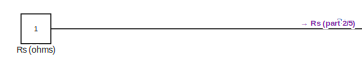
[diagram: root canvas - part 1/5, top center region]
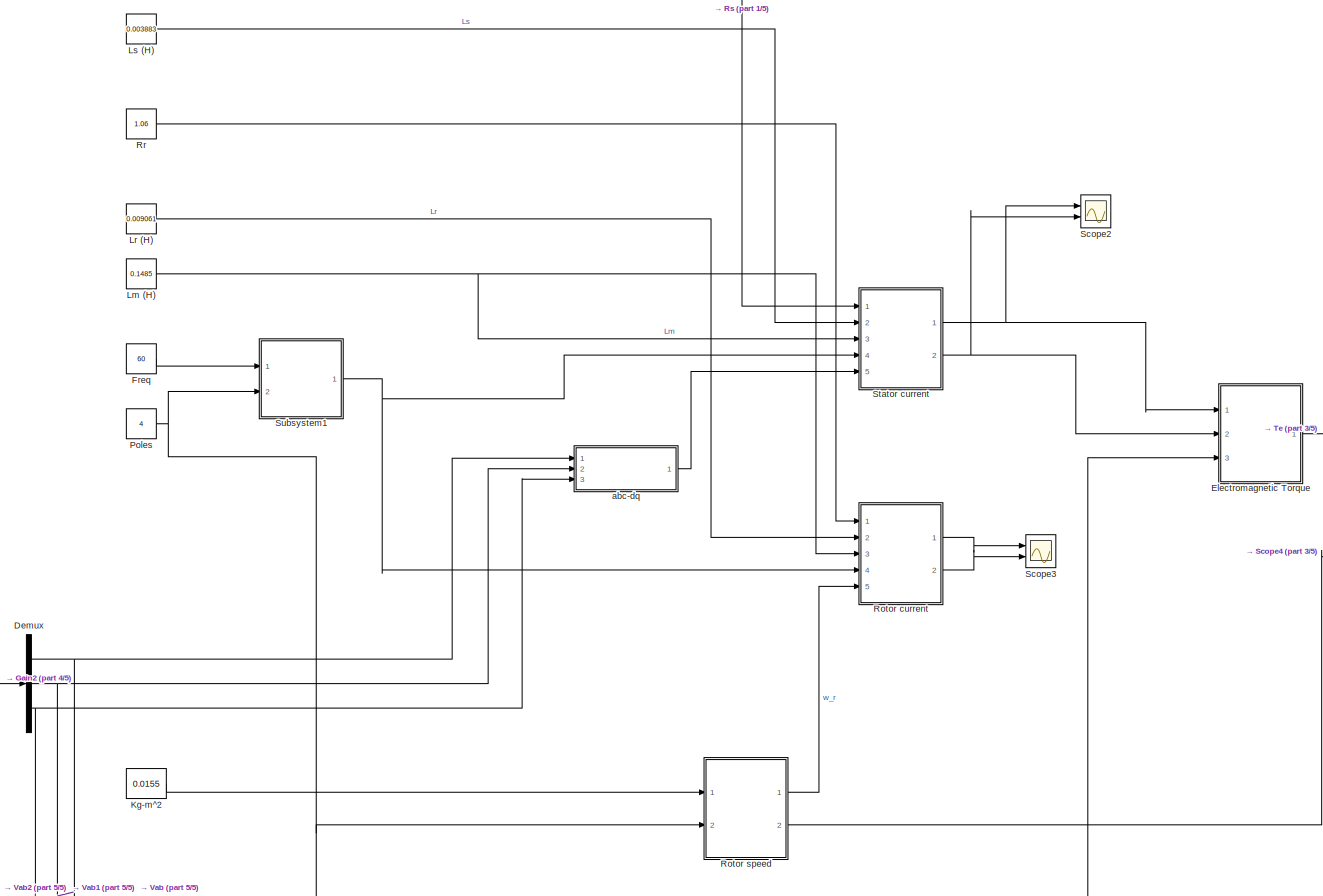
[diagram: root canvas - part 2/5, central region]
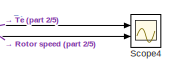
[diagram: root canvas - part 3/5, middle right region]
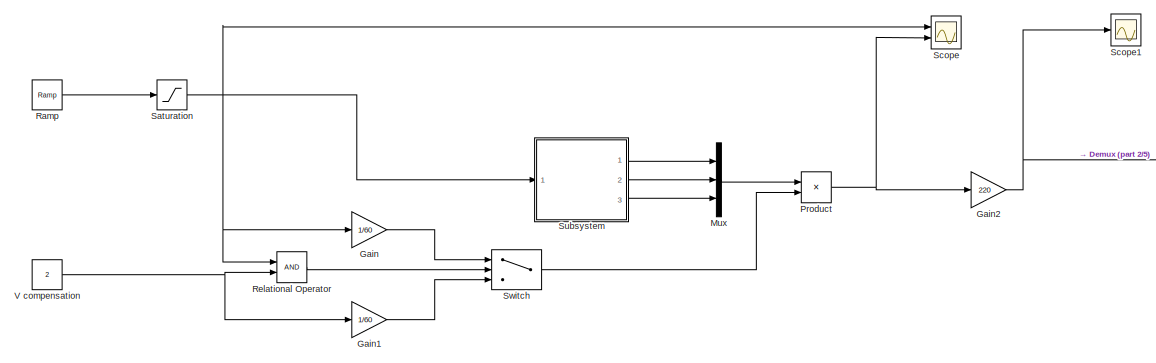
[diagram: root canvas - part 4/5, middle left region]
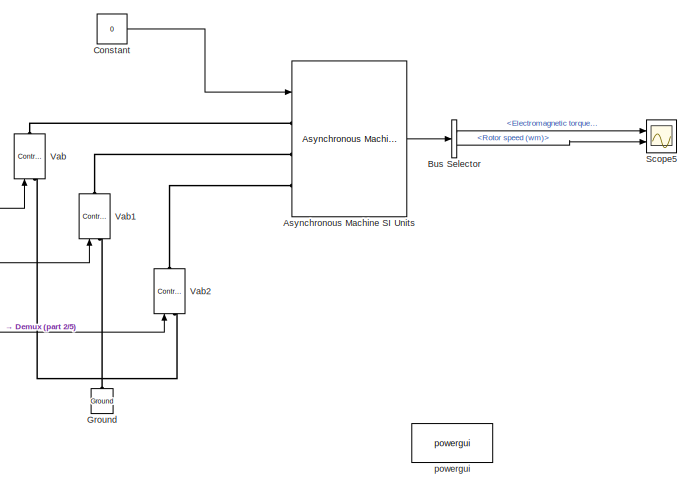
[diagram: root canvas - part 5/5, bottom center region]
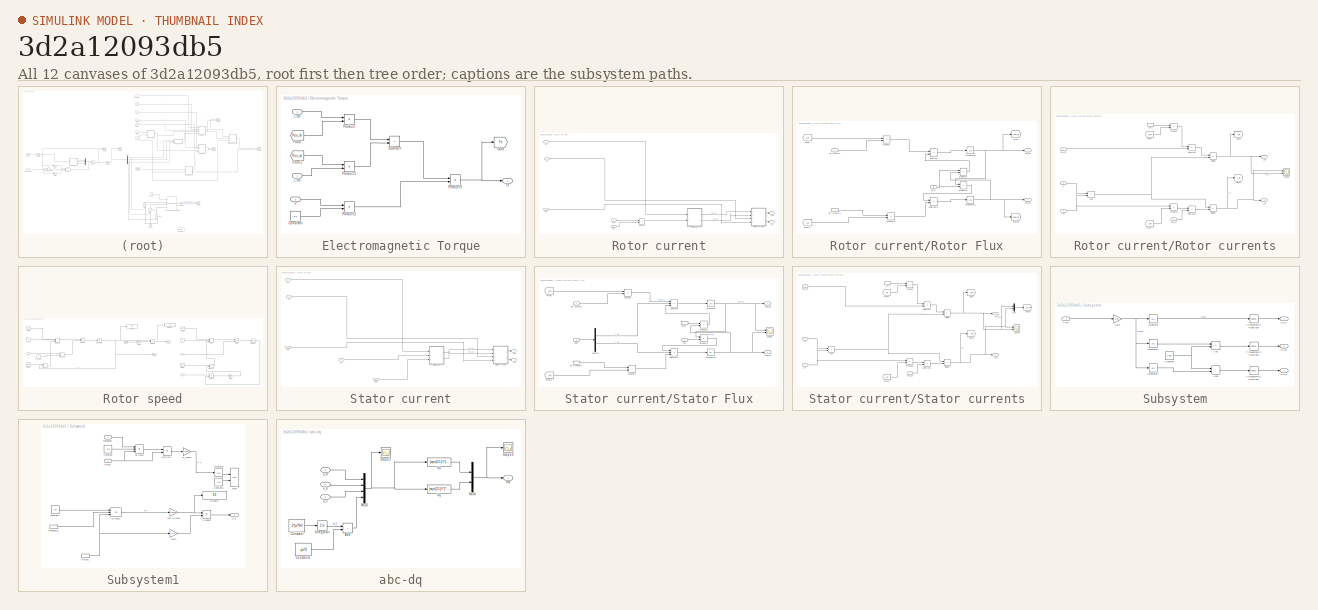
[diagram: thumbnail index - all 12 canvases of the model, root first then tree order]
MODEL slx_3d2a12093db5
KIND model
CONFIG AbsTol = auto
CONFIG EnableMultiTasking = off
CONFIG FixedStep = 100e-6
CONFIG MaxStep = auto
CONFIG MinStep = auto
CONFIG RelTol = 1e-3
CONFIG SampleTimeConstraint = Unconstrained
CONFIG Solver = FixedStepAuto
CONFIG SolverName = FixedStepAuto
CONFIG StartTime = 0.0
CONFIG StopTime = 2
BLOCK [Reference] Asynchronous Machine SI Units  REF=powerlib/Machines/Asynchronous Machine
SI Units
  Ports = [1, 1, 0, 0, 0, 3]
  SourceBlock = powerlib/Machines/Asynchronous Machine\nSI Units
  SourceProductBaseCode = PS
  SourceType = Asynchronous Machine
BLOCK [BusSelector] Bus Selector
  OutputSignals = Mechanical.Electromagnetic torque Te (N*m),Mechanical.Rotor speed (wm)
  Ports = [1, 2]
BLOCK [Constant] Constant
  Value = 0
BLOCK [Demux] Demux
  Outputs = 3
  Ports = [1, 3]
BLOCK [SubSystem] Electromagnetic Torque
  Ports = [3, 1]
  RequestExecContextInheritance = off
BLOCK [Constant] Electromagnetic Torque/Constant
  Value = 3/4
BLOCK [From] Electromagnetic Torque/From
  GotoTag = flux_dr
  TagVisibility = global
BLOCK [From] Electromagnetic Torque/From1
  GotoTag = flux_qr
  TagVisibility = global
BLOCK [Goto] Electromagnetic Torque/Goto
  GotoTag = Te
  TagVisibility = global
BLOCK [Inport] Electromagnetic Torque/P
  Port = 3
BLOCK [Product] Electromagnetic Torque/Product
  Ports = [2, 1]
BLOCK [Product] Electromagnetic Torque/Product1
  Ports = [2, 1]
BLOCK [Product] Electromagnetic Torque/Product2
  Ports = [2, 1]
BLOCK [Product] Electromagnetic Torque/Product3
  Ports = [2, 1]
BLOCK [Sum] Electromagnetic Torque/Subtract
  IconShape = rectangular
  Inputs = +-
  Ports = [2, 1]
BLOCK [Outport] Electromagnetic Torque/Te
  VectorParamsAs1DForOutWhenUnconnected = off
BLOCK [Inport] Electromagnetic Torque/i_ds
BLOCK [Inport] Electromagnetic Torque/i_qs
  Port = 2
BLOCK [Constant] Freq
  Value = 60
BLOCK [Gain] Gain
  Gain = 1/60
BLOCK [Gain] Gain1
  Gain = 1/60
BLOCK [Gain] Gain2
  Gain = 220
BLOCK [Reference] Ground  REF=powerlib/Elements/Ground
  NameLocation = right
  Ports = [0, 0, 0, 0, 0, 1]
  SourceBlock = powerlib/Elements/Ground
  SourceProductBaseCode = PS
  SourceType = Ground
BLOCK [Constant] Kg-m^2
  Value = 0.0155
BLOCK [Constant] Lm (H)
  Value = 0.1485
BLOCK [Constant] Lr (H)
  Value = 0.009061
BLOCK [Constant] Ls (H)
  Value = 0.003883
BLOCK [Mux] Mux
  DisplayOption = bar
  Inputs = 3
  Ports = [3, 1]
BLOCK [Constant] Poles
  Value = 4
BLOCK [Product] Product
  Ports = [2, 1]
BLOCK [Reference] Ramp  REF=simulink/Sources/Ramp
  Ports = [0, 1]
  SourceBlock = simulink/Sources/Ramp
  SourceProductBaseCode = SL
  SourceType = Ramp
BLOCK [RelationalOperator] Relational Operator
  InputSameDT = off
  OutDataTypeStr = boolean
  Ports = [2, 1]
  RndMeth = Simplest
BLOCK [SubSystem] Rotor current
  Ports = [5, 2]
  RequestExecContextInheritance = off
BLOCK [Inport] Rotor current/Lm
  Port = 3
BLOCK [Inport] Rotor current/Lr
  Port = 2
BLOCK [SubSystem] Rotor current/Rotor Flux
  Ports = [2, 2]
  RequestExecContextInheritance = off
BLOCK [From] Rotor current/Rotor Flux/From
  GotoTag = i_dr
  TagVisibility = global
BLOCK [From] Rotor current/Rotor Flux/From1
  GotoTag = i_qr
  TagVisibility = global
BLOCK [Goto] Rotor current/Rotor Flux/Goto
  GotoTag = flux_dr
  TagVisibility = global
BLOCK [Goto] Rotor current/Rotor Flux/Goto1
  GotoTag = flux_qr
  TagVisibility = global
BLOCK [Integrator] Rotor current/Rotor Flux/Integrator
  Ports = [1, 1]
BLOCK [Integrator] Rotor current/Rotor Flux/Integrator1
  Ports = [1, 1]
BLOCK [Inport] Rotor current/Rotor Flux/Rr (Ohms)
BLOCK [InportShadow] Rotor current/Rotor Flux/Rr (Ohms)1
BLOCK [Sum] Rotor current/Rotor Flux/Subtract
  IconShape = rectangular
  Inputs = -+
  Ports = [2, 1]
BLOCK [Sum] Rotor current/Rotor Flux/Subtract1
  IconShape = rectangular
  Inputs = --
  Ports = [2, 1]
BLOCK [Outport] Rotor current/Rotor Flux/flux_dr
  VectorParamsAs1DForOutWhenUnconnected = off
BLOCK [Outport] Rotor current/Rotor Flux/flux_qr
  Port = 2
  VectorParamsAs1DForOutWhenUnconnected = off
BLOCK [Product] Rotor current/Rotor Flux/product
  Inputs = **
  Ports = [2, 1]
BLOCK [Product] Rotor current/Rotor Flux/product1
  Inputs = **
  Ports = [2, 1]
BLOCK [Product] Rotor current/Rotor Flux/product2
  Inputs = **
  Ports = [2, 1]
BLOCK [Product] Rotor current/Rotor Flux/product3
  Inputs = **
  Ports = [2, 1]
BLOCK [Inport] Rotor current/Rotor Flux/w_s1
  Port = 2
BLOCK [SubSystem] Rotor current/Rotor currents
  Ports = [4, 2]
  RequestExecContextInheritance = off
BLOCK [Sum] Rotor current/Rotor currents/Add
  IconShape = rectangular
  Ports = [2, 1]
BLOCK [Product] Rotor current/Rotor currents/Divide
  Inputs = */
  Ports = [2, 1]
BLOCK [Product] Rotor current/Rotor currents/Divide1
  Inputs = /*
  Ports = [2, 1]
BLOCK [From] Rotor current/Rotor currents/From
  GotoTag = i_ds
  TagVisibility = global
BLOCK [From] Rotor current/Rotor currents/From1
  GotoTag = i_qs
  TagVisibility = global
BLOCK [Goto] Rotor current/Rotor currents/Goto
  GotoTag = i_dr
  TagVisibility = global
BLOCK [Goto] Rotor current/Rotor currents/Goto1
  GotoTag = i_qr
  TagVisibility = global
BLOCK [Inport] Rotor current/Rotor currents/Lm
  Port = 4
BLOCK [InportShadow] Rotor current/Rotor currents/Lm1
  Port = 4
BLOCK [Inport] Rotor current/Rotor currents/Lr
  Port = 3
BLOCK [Product] Rotor current/Rotor currents/Product
  Ports = [2, 1]
BLOCK [Product] Rotor current/Rotor currents/Product1
  Ports = [2, 1]
BLOCK [Scope] Rotor current/Rotor currents/Scope
  Floating = off
  NumInputPorts = 2
  Ports = [2]
  ScopeSpecificationString = Simulink.scopes.TimeScopeBlockCfg('CurrentConfiguration', extmgr.ConfigurationSet(extmgr.Configuration('Core','General UI',true),extmgr.Configuration('Core','Source UI',true),extmgr.Configuration('Sources','WiredSimulink',true,'DataLoggingVariableName','ScopeData1'),extmgr.Configuration('Visuals','Time Domain',true,'SerializedDisplays',{struct('MinYLimReal','-381.16693','MaxYLimReal','372.37731','...<+1415ch>
BLOCK [Sum] Rotor current/Rotor currents/Subtract
  IconShape = rectangular
  Inputs = -+
  Ports = [2, 1]
BLOCK [Sum] Rotor current/Rotor currents/Subtract1
  IconShape = rectangular
  Inputs = -+
  Ports = [2, 1]
BLOCK [Inport] Rotor current/Rotor currents/flus_qr
  Port = 2
BLOCK [Inport] Rotor current/Rotor currents/flux_dr
BLOCK [Outport] Rotor current/Rotor currents/i_dr
  VectorParamsAs1DForOutWhenUnconnected = off
BLOCK [Outport] Rotor current/Rotor currents/i_qr
  Port = 2
  VectorParamsAs1DForOutWhenUnconnected = off
BLOCK [Inport] Rotor current/Rr
BLOCK [Sum] Rotor current/Subtract
  IconShape = rectangular
  Inputs = +-
  Ports = [2, 1]
BLOCK [Outport] Rotor current/i_dr
  VectorParamsAs1DForOutWhenUnconnected = off
BLOCK [Outport] Rotor current/i_qr
  Port = 2
  VectorParamsAs1DForOutWhenUnconnected = off
BLOCK [Inport] Rotor current/w_r
  Port = 5
BLOCK [Inport] Rotor current/w_s
  Port = 4
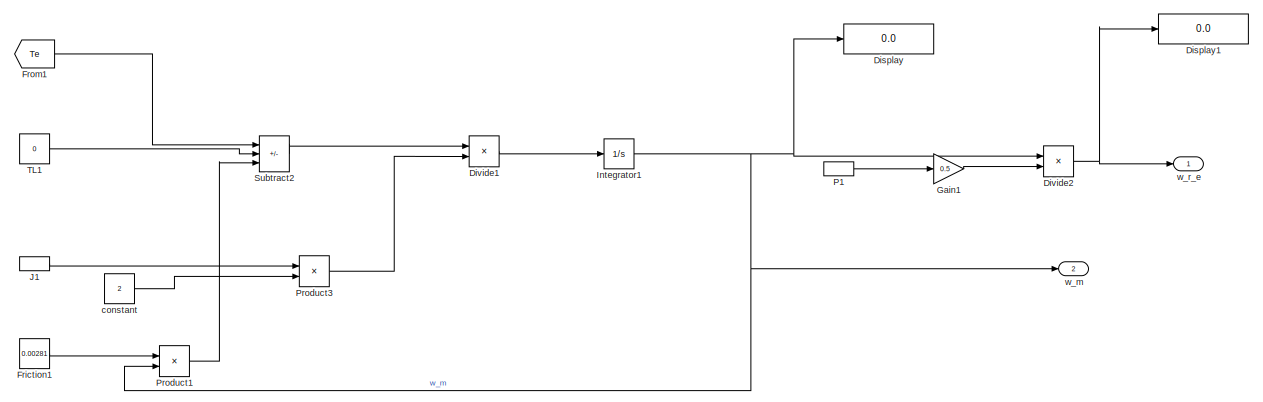
[diagram: Rotor speed - part 1/2, middle left region]
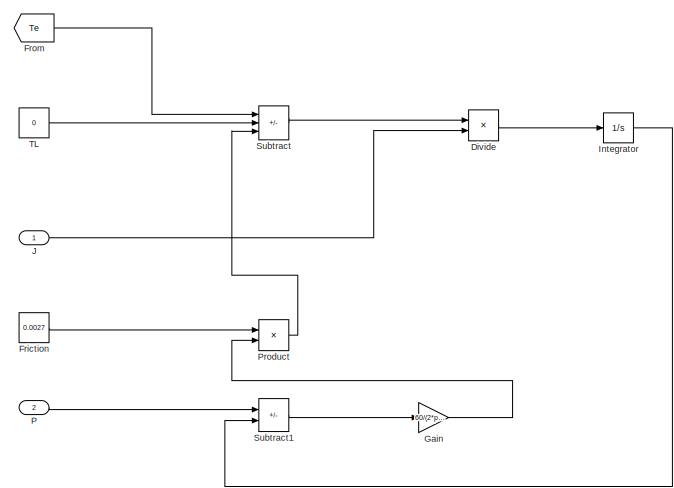
[diagram: Rotor speed - part 2/2, right side, full height]
BLOCK [SubSystem] Rotor speed
  Ports = [2, 2]
  RequestExecContextInheritance = off
BLOCK [Display] Rotor speed/Display
  Decimation = 1
  Ports = [1]
BLOCK [Display] Rotor speed/Display1
  Decimation = 1
  Ports = [1]
BLOCK [Product] Rotor speed/Divide
  Commented = on
  Inputs = */
  Ports = [2, 1]
BLOCK [Product] Rotor speed/Divide1
  Inputs = */
  Ports = [2, 1]
BLOCK [Product] Rotor speed/Divide2
  Inputs = **
  Ports = [2, 1]
BLOCK [Constant] Rotor speed/Friction
  Commented = on
  Value = 0.0027
BLOCK [Constant] Rotor speed/Friction1
  Value = 0.00281
BLOCK [From] Rotor speed/From
  Commented = on
  GotoTag = Te
  TagVisibility = global
BLOCK [From] Rotor speed/From1
  GotoTag = Te
  TagVisibility = global
BLOCK [Gain] Rotor speed/Gain
  Commented = on
  Gain = 60/(2*pi)
BLOCK [Gain] Rotor speed/Gain1
  Gain = 0.5
BLOCK [Integrator] Rotor speed/Integrator
  Commented = on
  Ports = [1, 1]
BLOCK [Integrator] Rotor speed/Integrator1
  Ports = [1, 1]
BLOCK [Inport] Rotor speed/J
BLOCK [InportShadow] Rotor speed/J1
BLOCK [Inport] Rotor speed/P
  Port = 2
BLOCK [InportShadow] Rotor speed/P1
  Port = 2
BLOCK [Product] Rotor speed/Product
  Commented = on
  Ports = [2, 1]
BLOCK [Product] Rotor speed/Product1
  Ports = [2, 1]
BLOCK [Product] Rotor speed/Product3
  Ports = [2, 1]
BLOCK [Sum] Rotor speed/Subtract
  Commented = on
  IconShape = rectangular
  Inputs = +--
  Ports = [3, 1]
BLOCK [Sum] Rotor speed/Subtract1
  Commented = on
  IconShape = rectangular
  Inputs = +-
  Ports = [2, 1]
BLOCK [Sum] Rotor speed/Subtract2
  IconShape = rectangular
  Inputs = +--
  Ports = [3, 1]
BLOCK [Constant] Rotor speed/TL
  Commented = on
  Value = 0
BLOCK [Constant] Rotor speed/TL1
  Value = 0
BLOCK [Constant] Rotor speed/constant
  Value = 2
BLOCK [Outport] Rotor speed/w_m
  Port = 2
BLOCK [Outport] Rotor speed/w_r_e
  VectorParamsAs1DForOutWhenUnconnected = off
BLOCK [Constant] Rr
  Value = 1.06
BLOCK [Constant] Rs (ohms)
BLOCK [Saturate] Saturation
  UpperLimit = 60
BLOCK [Scope] Scope
  Floating = off
  NumInputPorts = 2
  Ports = [2]
  ScopeSpecificationString = Simulink.scopes.TimeScopeBlockCfg('CurrentConfiguration', extmgr.ConfigurationSet(extmgr.Configuration('Core','General UI',true),extmgr.Configuration('Core','Source UI',true),extmgr.Configuration('Sources','WiredSimulink',true),extmgr.Configuration('Visuals','Time Domain',true,'SerializedDisplays',{struct('MinYLimReal','37.9653','MaxYLimReal','62.4483','YLabelReal','','MinYLimMag','37.9653','MaxYL...<+2053ch>
BLOCK [Scope] Scope1
  Floating = off
  NumInputPorts = 1
  Ports = [1]
  ScopeSpecificationString = Simulink.scopes.TimeScopeBlockCfg('CurrentConfiguration', extmgr.ConfigurationSet(extmgr.Configuration('Core','General UI',true),extmgr.Configuration('Core','Source UI',true),extmgr.Configuration('Sources','WiredSimulink',true,'DataLoggingVariableName','ScopeData1'),extmgr.Configuration('Visuals','Time Domain',true,'SerializedDisplays',{struct('MinYLimReal','-275.00000','MaxYLimReal','275.00000','...<+1427ch>
BLOCK [Scope] Scope2
  Floating = off
  NumInputPorts = 2
  Ports = [2]
  ScopeSpecificationString = Simulink.scopes.TimeScopeBlockCfg('CurrentConfiguration', extmgr.ConfigurationSet(extmgr.Configuration('Core','General UI',true),extmgr.Configuration('Core','Source UI',true),extmgr.Configuration('Sources','WiredSimulink',true,'DataLoggingVariableName','ScopeData2'),extmgr.Configuration('Visuals','Time Domain',true,'SerializedDisplays',{struct('MinYLimReal','-17.14489','MaxYLimReal','16.94144','YL...<+1475ch>
BLOCK [Scope] Scope3
  Floating = off
  NumInputPorts = 2
  Ports = [2]
  ScopeSpecificationString = Simulink.scopes.TimeScopeBlockCfg('CurrentConfiguration', extmgr.ConfigurationSet(extmgr.Configuration('Core','General UI',true),extmgr.Configuration('Core','Source UI',true),extmgr.Configuration('Sources','WiredSimulink',true,'DataLoggingVariableName','ScopeData3'),extmgr.Configuration('Visuals','Time Domain',true,'SerializedDisplays',{struct('MinYLimReal','-16.06381','MaxYLimReal','15.72089','YL...<+1473ch>
BLOCK [Scope] Scope4
  Floating = off
  NumInputPorts = 2
  Ports = [2]
  ScopeSpecificationString = Simulink.scopes.TimeScopeBlockCfg('CurrentConfiguration', extmgr.ConfigurationSet(extmgr.Configuration('Core','General UI',true),extmgr.Configuration('Core','Source UI',true),extmgr.Configuration('Sources','WiredSimulink',true,'DataLoggingVariableName','ScopeData4'),extmgr.Configuration('Visuals','Time Domain',true,'SerializedDisplays',{struct('MinYLimReal','-2.39447','MaxYLimReal','16.94372','YLa...<+2113ch>
BLOCK [Scope] Scope5
  Floating = off
  NumInputPorts = 2
  Ports = [2]
  ScopeSpecificationString = Simulink.scopes.TimeScopeBlockCfg('CurrentConfiguration', extmgr.ConfigurationSet(extmgr.Configuration('Core','General UI',true),extmgr.Configuration('Core','Source UI',true),extmgr.Configuration('Sources','WiredSimulink',true,'DataLoggingVariableName','ScopeData5'),extmgr.Configuration('Visuals','Time Domain',true,'SerializedDisplays',{struct('MinYLimReal','-4.05666','MaxYLimReal','13.37057','YLa...<+2123ch>
BLOCK [SubSystem] Stator current
  Ports = [5, 2]
  RequestExecContextInheritance = off
BLOCK [Inport] Stator current/Lm
  Port = 3
BLOCK [Inport] Stator current/Ls
  Port = 2
BLOCK [Inport] Stator current/Rs
BLOCK [SubSystem] Stator current/Stator Flux
  Ports = [3, 2]
  RequestExecContextInheritance = off
BLOCK [Demux] Stator current/Stator Flux/Demux
  Outputs = 2
  Ports = [1, 2]
BLOCK [From] Stator current/Stator Flux/From
  GotoTag = i_ds
  TagVisibility = global
BLOCK [From] Stator current/Stator Flux/From1
  GotoTag = i_qs
  TagVisibility = global
BLOCK [Integrator] Stator current/Stator Flux/Integrator
  Ports = [1, 1]
BLOCK [Integrator] Stator current/Stator Flux/Integrator1
  Ports = [1, 1]
BLOCK [Inport] Stator current/Stator Flux/Rs (Ohms)
BLOCK [InportShadow] Stator current/Stator Flux/Rs (Ohms)1
BLOCK [Scope] Stator current/Stator Flux/Scope
  Floating = off
  NumInputPorts = 2
  Ports = [2]
  ScopeSpecificationString = Simulink.scopes.TimeScopeBlockCfg('CurrentConfiguration', extmgr.ConfigurationSet(extmgr.Configuration('Core','General UI',true),extmgr.Configuration('Core','Source UI',true),extmgr.Configuration('Sources','WiredSimulink',true,'DataLoggingVariableName','ScopeData2'),extmgr.Configuration('Visuals','Time Domain',true,'SerializedDisplays',{struct('MinYLimReal','-439.80147','MaxYLimReal','431.65029','...<+1459ch>
BLOCK [Sum] Stator current/Stator Flux/Subtract
  IconShape = rectangular
  Inputs = -++
  Ports = [3, 1]
BLOCK [Sum] Stator current/Stator Flux/Subtract1
  IconShape = rectangular
  Inputs = -+-
  Ports = [3, 1]
BLOCK [Inport] Stator current/Stator Flux/dq0
  Port = 3
BLOCK [Outport] Stator current/Stator Flux/flux_ds
  VectorParamsAs1DForOutWhenUnconnected = off
BLOCK [Outport] Stator current/Stator Flux/flux_qs
  Port = 2
  VectorParamsAs1DForOutWhenUnconnected = off
BLOCK [Product] Stator current/Stator Flux/product
  Inputs = **
  Ports = [2, 1]
BLOCK [Product] Stator current/Stator Flux/product1
  Inputs = **
  Ports = [2, 1]
BLOCK [Product] Stator current/Stator Flux/product2
  Inputs = **
  Ports = [2, 1]
BLOCK [Product] Stator current/Stator Flux/product3
  Inputs = **
  Ports = [2, 1]
BLOCK [Inport] Stator current/Stator Flux/w_s
  Port = 2
BLOCK [InportShadow] Stator current/Stator Flux/w_s1
  Port = 2
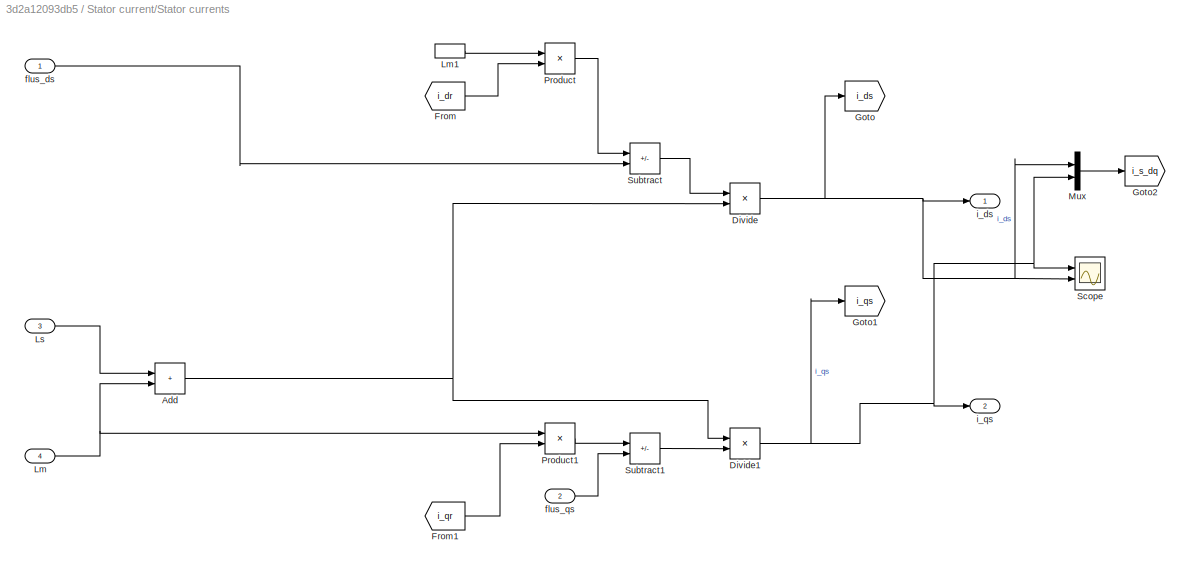
BLOCK [SubSystem] Stator current/Stator currents
  Ports = [4, 2]
  RequestExecContextInheritance = off
BLOCK [Sum] Stator current/Stator currents/Add
  IconShape = rectangular
  Ports = [2, 1]
BLOCK [Product] Stator current/Stator currents/Divide
  Inputs = */
  Ports = [2, 1]
BLOCK [Product] Stator current/Stator currents/Divide1
  Inputs = /*
  Ports = [2, 1]
BLOCK [From] Stator current/Stator currents/From
  GotoTag = i_dr
  TagVisibility = global
BLOCK [From] Stator current/Stator currents/From1
  GotoTag = i_qr
  TagVisibility = global
BLOCK [Goto] Stator current/Stator currents/Goto
  GotoTag = i_ds
  TagVisibility = global
BLOCK [Goto] Stator current/Stator currents/Goto1
  GotoTag = i_qs
  TagVisibility = global
BLOCK [Goto] Stator current/Stator currents/Goto2
  GotoTag = i_s_dq
  TagVisibility = global
BLOCK [Inport] Stator current/Stator currents/Lm
  Port = 4
BLOCK [InportShadow] Stator current/Stator currents/Lm1
  Port = 4
BLOCK [Inport] Stator current/Stator currents/Ls
  Port = 3
BLOCK [Mux] Stator current/Stator currents/Mux
  DisplayOption = bar
  Inputs = 2
  Ports = [2, 1]
BLOCK [Product] Stator current/Stator currents/Product
  Ports = [2, 1]
BLOCK [Product] Stator current/Stator currents/Product1
  Ports = [2, 1]
BLOCK [Scope] Stator current/Stator currents/Scope
  Floating = off
  NumInputPorts = 2
  Ports = [2]
  ScopeSpecificationString = Simulink.scopes.TimeScopeBlockCfg('CurrentConfiguration', extmgr.ConfigurationSet(extmgr.Configuration('Core','General UI',true),extmgr.Configuration('Core','Source UI',true),extmgr.Configuration('Sources','WiredSimulink',true,'DataLoggingVariableName','ScopeData1'),extmgr.Configuration('Visuals','Time Domain',true,'SerializedDisplays',{struct('MinYLimReal','-439.80147','MaxYLimReal','431.65029','...<+1428ch>
BLOCK [Sum] Stator current/Stator currents/Subtract
  IconShape = rectangular
  Inputs = -+
  Ports = [2, 1]
BLOCK [Sum] Stator current/Stator currents/Subtract1
  IconShape = rectangular
  Inputs = -+
  Ports = [2, 1]
BLOCK [Inport] Stator current/Stator currents/flus_ds
BLOCK [Inport] Stator current/Stator currents/flus_qs
  Port = 2
BLOCK [Outport] Stator current/Stator currents/i_ds
  VectorParamsAs1DForOutWhenUnconnected = off
BLOCK [Outport] Stator current/Stator currents/i_qs
  Port = 2
  VectorParamsAs1DForOutWhenUnconnected = off
BLOCK [Inport] Stator current/dq0
  Port = 5
BLOCK [Outport] Stator current/i_ds
  VectorParamsAs1DForOutWhenUnconnected = off
BLOCK [Outport] Stator current/i_qs
  Port = 2
  VectorParamsAs1DForOutWhenUnconnected = off
BLOCK [Inport] Stator current/w_s
  Port = 4
BLOCK [SubSystem] Subsystem
  Ports = [1, 3]
  RequestExecContextInheritance = off
BLOCK [Sum] Subsystem/Add
  IconShape = rectangular
  Inputs = +-
  Ports = [2, 1]
BLOCK [Sum] Subsystem/Add1
  IconShape = rectangular
  Ports = [2, 1]
BLOCK [Constant] Subsystem/Constant
  Value = 2*pi/3
BLOCK [Inport] Subsystem/Freq
BLOCK [Gain] Subsystem/Gain
  Gain = 2*pi
BLOCK [Integrator] Subsystem/Integrator
  Ports = [1, 1]
BLOCK [Integrator] Subsystem/Integrator1
  Ports = [1, 1]
BLOCK [Integrator] Subsystem/Integrator2
  Ports = [1, 1]
BLOCK [Outport] Subsystem/Sin_A
BLOCK [Outport] Subsystem/Sin_B
  Port = 2
BLOCK [Outport] Subsystem/Sin_C
  Port = 3
BLOCK [Trigonometry] Subsystem/Trigonometric Function1
  Ports = [1, 1]
BLOCK [Trigonometry] Subsystem/Trigonometric Function2
  Ports = [1, 1]
BLOCK [Trigonometry] Subsystem/Trigonometric Function3
  Ports = [1, 1]
BLOCK [SubSystem] Subsystem1
  Ports = [2, 1]
  RequestExecContextInheritance = off
BLOCK [Constant] Subsystem1/Constant
  Commented = on
  Value = 120
BLOCK [Constant] Subsystem1/Constant1
  Commented = on
  Value = 2*pi
BLOCK [Display] Subsystem1/Display
  Decimation = 1
  Ports = [1]
BLOCK [Product] Subsystem1/Divide2
  Inputs = **/
  Ports = [3, 1]
BLOCK [Inport] Subsystem1/Frequency
BLOCK [InportShadow] Subsystem1/Frequency1
BLOCK [Gain] Subsystem1/Gain
  Gain = 0.5
BLOCK [Integrator] Subsystem1/Integrator
  Commented = on
  Ports = [1, 1]
BLOCK [Inport] Subsystem1/Poles
  Port = 2
BLOCK [InportShadow] Subsystem1/Poles1
  Port = 2
BLOCK [Product] Subsystem1/Product
  Ports = [2, 1]
BLOCK [Math] Subsystem1/Rem
  Commented = on
  Operator = rem
  Ports = [2, 1]
  SignedPower = on
BLOCK [Constant] Subsystem1/constant1
  Value = 120
BLOCK [Product] Subsystem1/multipliy
  Commented = on
  Inputs = **
  Ports = [2, 1]
BLOCK [Product] Subsystem1/ns (rpm)
  Commented = on
  Inputs = **/
  Ports = [3, 1]
BLOCK [Gain] Subsystem1/rpm to rad//s
  Gain = 2*pi/60
BLOCK [Outport] Subsystem1/w_s
  VectorParamsAs1DForOutWhenUnconnected = off
BLOCK [Gain] Subsystem1/w_s_gain
  Commented = on
  Gain = 2*pi/60
BLOCK [Switch] Switch
  Criteria = u2 > Threshold
  InputSameDT = off
  SaturateOnIntegerOverflow = off
BLOCK [Constant] V compensation
  Value = 2
BLOCK [Reference] Vab  REF=powerlib/Electrical
Sources/Controlled Voltage Source
  AttributesFormatString = \n
  Description = source block
  NameLocation = right
  Ports = [1, 0, 0, 0, 0, 1, 1]
  SourceBlock = powerlib/Electrical\nSources/Controlled Voltage Source
  SourceProductBaseCode = MT,PS
  SourceType = Controlled Voltage Source
BLOCK [Reference] Vab1  REF=powerlib/Electrical
Sources/Controlled Voltage Source
  AttributesFormatString = \n
  Description = source block
  NameLocation = right
  Ports = [1, 0, 0, 0, 0, 1, 1]
  SourceBlock = powerlib/Electrical\nSources/Controlled Voltage Source
  SourceProductBaseCode = MT,PS
  SourceType = Controlled Voltage Source
BLOCK [Reference] Vab2  REF=powerlib/Electrical
Sources/Controlled Voltage Source
  AttributesFormatString = \n
  Description = source block
  NameLocation = right
  Ports = [1, 0, 0, 0, 0, 1, 1]
  SourceBlock = powerlib/Electrical\nSources/Controlled Voltage Source
  SourceProductBaseCode = MT,PS
  SourceType = Controlled Voltage Source
BLOCK [SubSystem] abc-dq
  Ports = [3, 1]
  RequestExecContextInheritance = off
BLOCK [Sum] abc-dq/Add
  IconShape = rectangular
  Ports = [2, 1]
BLOCK [Constant] abc-dq/Constant
  Value = 2*pi*60
BLOCK [Constant] abc-dq/Constant1
  Value = -pi/3
BLOCK [Integrator] abc-dq/Integrator
  Ports = [1, 1]
BLOCK [Mux] abc-dq/Mux3
  DisplayOption = bar
  Ports = [4, 1]
BLOCK [Mux] abc-dq/Mux4
  DisplayOption = bar
  Inputs = 2
  Ports = [2, 1]
BLOCK [Scope] abc-dq/Scope2
  Floating = off
  NumInputPorts = 1
  Ports = [1]
  ScopeSpecificationString = Simulink.scopes.TimeScopeBlockCfg('CurrentConfiguration', extmgr.ConfigurationSet(extmgr.Configuration('Core','General UI',true),extmgr.Configuration('Core','Source UI',true),extmgr.Configuration('Sources','WiredSimulink',true,'DataLoggingVariableName','ScopeData1'),extmgr.Configuration('Visuals','Time Domain',true,'SerializedDisplays',{struct('MinYLimReal','-442.48871','MaxYLimReal','582.39841','...<+1446ch>
BLOCK [Scope] abc-dq/Scope3
  Floating = off
  NumInputPorts = 1
  Ports = [1]
  ScopeSpecificationString = Simulink.scopes.TimeScopeBlockCfg('CurrentConfiguration', extmgr.ConfigurationSet(extmgr.Configuration('Core','General UI',true),extmgr.Configuration('Core','Source UI',true),extmgr.Configuration('Sources','WiredSimulink',true,'DataLoggingVariableName','ScopeData1'),extmgr.Configuration('Visuals','Time Domain',true,'SerializedDisplays',{struct('MinYLimReal','-279.31051','MaxYLimReal','431.72834','...<+1450ch>
BLOCK [Fcn] abc-dq/Vd
  Expr = -(sqrt(21)/7)*(u(1)*cos(u(4))+u(2)*cos(u(4)-2*pi/3)+u(3)*cos(u(4)+2*pi/3))
BLOCK [Fcn] abc-dq/Vq
  Expr = (sqrt(21)/7)*(u(1)*sin(u(4))+u(2)*sin(u(4)-2*pi/3)+u(3)*sin(u(4)+2*pi/3))
BLOCK [Outport] abc-dq/dq
  VectorParamsAs1DForOutWhenUnconnected = off
BLOCK [Inport] abc-dq/v_a
BLOCK [Inport] abc-dq/v_b
  Port = 2
BLOCK [Inport] abc-dq/v_c
  Port = 3
BLOCK [Reference] powergui  REF=powerlib/powergui
  Ports = []
  Priority = 1
  SourceBlock = powerlib/powergui
  SourceProductBaseCode = PS
  SourceType = PSB option menu block
LINE Asynchronous Machine SI Units:1 -> Bus Selector:1
LINE Bus Selector:1 -> Scope5:1
LINE Bus Selector:2 -> Scope5:2
LINE Constant:1 -> Asynchronous Machine SI Units:1
NET Demux:1 -> Vab:1, abc-dq:1
NET Demux:2 -> Vab1:1, abc-dq:2
NET Demux:3 -> Vab2:1, abc-dq:3
LINE Electromagnetic Torque/Constant:1 -> Electromagnetic Torque/Product2:2
LINE Electromagnetic Torque/From1:1 -> Electromagnetic Torque/Product1:1
LINE Electromagnetic Torque/From:1 -> Electromagnetic Torque/Product:2
LINE Electromagnetic Torque/P:1 -> Electromagnetic Torque/Product2:1
LINE Electromagnetic Torque/Product1:1 -> Electromagnetic Torque/Subtract:2
LINE Electromagnetic Torque/Product2:1 -> Electromagnetic Torque/Product3:2
NET Electromagnetic Torque/Product3:1 -> Electromagnetic Torque/Goto:1, Electromagnetic Torque/Te:1
LINE Electromagnetic Torque/Product:1 -> Electromagnetic Torque/Subtract:1
LINE Electromagnetic Torque/Subtract:1 -> Electromagnetic Torque/Product3:1
LINE Electromagnetic Torque/i_ds:1 -> Electromagnetic Torque/Product1:2
LINE Electromagnetic Torque/i_qs:1 -> Electromagnetic Torque/Product:1
LINE Electromagnetic Torque:1 -> Scope4:1
LINE Freq:1 -> Subsystem1:1
LINE Gain1:1 -> Switch:3
NET Gain2:1 -> Demux:1, Scope1:1
LINE Gain:1 -> Switch:1
LINE Kg-m^2:1 -> Rotor speed:1
NET Lm (H):1 -> Rotor current:3, Stator current:3
LINE Lr (H):1 -> Rotor current:2
LINE Ls (H):1 -> Stator current:2
LINE Mux:1 -> Product:1
NET Poles:1 -> Electromagnetic Torque:3, Rotor speed:2, Subsystem1:2
NET Product:1 -> Gain2:1, Scope:2
LINE Ramp:1 -> Saturation:1
LINE Relational Operator:1 -> Switch:2
LINE Rotor current/Lm:1 -> Rotor current/Rotor currents:4
LINE Rotor current/Lr:1 -> Rotor current/Rotor currents:3
LINE Rotor current/Rotor Flux/From1:1 -> Rotor current/Rotor Flux/product1:2
LINE Rotor current/Rotor Flux/From:1 -> Rotor current/Rotor Flux/product:1
NET Rotor current/Rotor Flux/Integrator1:1 -> Rotor current/Rotor Flux/Goto1:1, Rotor current/Rotor Flux/flux_qr:1, Rotor current/Rotor Flux/product3:2
NET Rotor current/Rotor Flux/Integrator:1 -> Rotor current/Rotor Flux/Goto:1, Rotor current/Rotor Flux/flux_dr:1, Rotor current/Rotor Flux/product2:1
LINE Rotor current/Rotor Flux/Rr (Ohms)1:1 -> Rotor current/Rotor Flux/product1:1
LINE Rotor current/Rotor Flux/Rr (Ohms):1 -> Rotor current/Rotor Flux/product:2
LINE Rotor current/Rotor Flux/Subtract1:1 -> Rotor current/Rotor Flux/Integrator1:1
LINE Rotor current/Rotor Flux/Subtract:1 -> Rotor current/Rotor Flux/Integrator:1
LINE Rotor current/Rotor Flux/product1:1 -> Rotor current/Rotor Flux/Subtract1:2
LINE Rotor current/Rotor Flux/product2:1 -> Rotor current/Rotor Flux/Subtract1:1
LINE Rotor current/Rotor Flux/product3:1 -> Rotor current/Rotor Flux/Subtract:2
LINE Rotor current/Rotor Flux/product:1 -> Rotor current/Rotor Flux/Subtract:1
NET Rotor current/Rotor Flux/w_s1:1 -> Rotor current/Rotor Flux/product2:2, Rotor current/Rotor Flux/product3:1
LINE Rotor current/Rotor Flux:1 -> Rotor current/Rotor currents:1
LINE Rotor current/Rotor Flux:2 -> Rotor current/Rotor currents:2
NET Rotor current/Rotor currents/Add:1 -> Rotor current/Rotor currents/Divide1:1, Rotor current/Rotor currents/Divide:2
NET Rotor current/Rotor currents/Divide1:1 -> Rotor current/Rotor currents/Goto1:1, Rotor current/Rotor currents/Scope:1, Rotor current/Rotor currents/i_qr:1
NET Rotor current/Rotor currents/Divide:1 -> Rotor current/Rotor currents/Goto:1, Rotor current/Rotor currents/Scope:2, Rotor current/Rotor currents/i_dr:1
LINE Rotor current/Rotor currents/From1:1 -> Rotor current/Rotor currents/Product1:2
LINE Rotor current/Rotor currents/From:1 -> Rotor current/Rotor currents/Product:2
LINE Rotor current/Rotor currents/Lm1:1 -> Rotor current/Rotor currents/Product:1
NET Rotor current/Rotor currents/Lm:1 -> Rotor current/Rotor currents/Add:2, Rotor current/Rotor currents/Product1:1
LINE Rotor current/Rotor currents/Lr:1 -> Rotor current/Rotor currents/Add:1
LINE Rotor current/Rotor currents/Product1:1 -> Rotor current/Rotor currents/Subtract1:1
LINE Rotor current/Rotor currents/Product:1 -> Rotor current/Rotor currents/Subtract:1
LINE Rotor current/Rotor currents/Subtract1:1 -> Rotor current/Rotor currents/Divide1:2
LINE Rotor current/Rotor currents/Subtract:1 -> Rotor current/Rotor currents/Divide:1
LINE Rotor current/Rotor currents/flus_qr:1 -> Rotor current/Rotor currents/Subtract1:2
LINE Rotor current/Rotor currents/flux_dr:1 -> Rotor current/Rotor currents/Subtract:2
LINE Rotor current/Rotor currents:1 -> Rotor current/i_dr:1
LINE Rotor current/Rotor currents:2 -> Rotor current/i_qr:1
LINE Rotor current/Rr:1 -> Rotor current/Rotor Flux:1
LINE Rotor current/Subtract:1 -> Rotor current/Rotor Flux:2
LINE Rotor current/w_r:1 -> Rotor current/Subtract:2
LINE Rotor current/w_s:1 -> Rotor current/Subtract:1
LINE Rotor current:1 -> Scope3:1
LINE Rotor current:2 -> Scope3:2
LINE Rotor speed/Divide1:1 -> Rotor speed/Integrator1:1
NET Rotor speed/Divide2:1 -> Rotor speed/Display1:1, Rotor speed/w_r_e:1
LINE Rotor speed/Divide:1 -> Rotor speed/Integrator:1
LINE Rotor speed/Friction1:1 -> Rotor speed/Product1:1
LINE Rotor speed/Friction:1 -> Rotor speed/Product:1
LINE Rotor speed/From1:1 -> Rotor speed/Subtract2:1
LINE Rotor speed/From:1 -> Rotor speed/Subtract:1
LINE Rotor speed/Gain1:1 -> Rotor speed/Divide2:2
LINE Rotor speed/Gain:1 -> Rotor speed/Product:2
NET Rotor speed/Integrator1:1 -> Rotor speed/Display:1, Rotor speed/Divide2:1, Rotor speed/Product1:2, Rotor speed/w_m:1
LINE Rotor speed/Integrator:1 -> Rotor speed/Subtract1:2
LINE Rotor speed/J1:1 -> Rotor speed/Product3:1
LINE Rotor speed/J:1 -> Rotor speed/Divide:2
LINE Rotor speed/P1:1 -> Rotor speed/Gain1:1
LINE Rotor speed/P:1 -> Rotor speed/Subtract1:1
LINE Rotor speed/Product1:1 -> Rotor speed/Subtract2:3
LINE Rotor speed/Product3:1 -> Rotor speed/Divide1:2
LINE Rotor speed/Product:1 -> Rotor speed/Subtract:3
LINE Rotor speed/Subtract1:1 -> Rotor speed/Gain:1
LINE Rotor speed/Subtract2:1 -> Rotor speed/Divide1:1
LINE Rotor speed/Subtract:1 -> Rotor speed/Divide:1
LINE Rotor speed/TL1:1 -> Rotor speed/Subtract2:2
LINE Rotor speed/TL:1 -> Rotor speed/Subtract:2
LINE Rotor speed/constant:1 -> Rotor speed/Product3:2
LINE Rotor speed:1 -> Rotor current:5
LINE Rotor speed:2 -> Scope4:2
LINE Rr:1 -> Rotor current:1
LINE Rs (ohms):1 -> Stator current:1
NET Saturation:1 -> Gain:1, Relational Operator:1, Scope:1, Subsystem:1
LINE Stator current/Lm:1 -> Stator current/Stator currents:4
LINE Stator current/Ls:1 -> Stator current/Stator currents:3
LINE Stator current/Rs:1 -> Stator current/Stator Flux:1
LINE Stator current/Stator Flux/Demux:1 -> Stator current/Stator Flux/Subtract:2
LINE Stator current/Stator Flux/Demux:2 -> Stator current/Stator Flux/Subtract1:2
LINE Stator current/Stator Flux/From1:1 -> Stator current/Stator Flux/product1:2
LINE Stator current/Stator Flux/From:1 -> Stator current/Stator Flux/product:1
NET Stator current/Stator Flux/Integrator1:1 -> Stator current/Stator Flux/Scope:2, Stator current/Stator Flux/flux_qs:1, Stator current/Stator Flux/product3:2
NET Stator current/Stator Flux/Integrator:1 -> Stator current/Stator Flux/Scope:1, Stator current/Stator Flux/flux_ds:1, Stator current/Stator Flux/product2:1
LINE Stator current/Stator Flux/Rs (Ohms)1:1 -> Stator current/Stator Flux/product1:1
LINE Stator current/Stator Flux/Rs (Ohms):1 -> Stator current/Stator Flux/product:2
LINE Stator current/Stator Flux/Subtract1:1 -> Stator current/Stator Flux/Integrator1:1
LINE Stator current/Stator Flux/Subtract:1 -> Stator current/Stator Flux/Integrator:1
LINE Stator current/Stator Flux/dq0:1 -> Stator current/Stator Flux/Demux:1
LINE Stator current/Stator Flux/product1:1 -> Stator current/Stator Flux/Subtract1:3
LINE Stator current/Stator Flux/product2:1 -> Stator current/Stator Flux/Subtract1:1
LINE Stator current/Stator Flux/product3:1 -> Stator current/Stator Flux/Subtract:3
LINE Stator current/Stator Flux/product:1 -> Stator current/Stator Flux/Subtract:1
LINE Stator current/Stator Flux/w_s1:1 -> Stator current/Stator Flux/product3:1
LINE Stator current/Stator Flux/w_s:1 -> Stator current/Stator Flux/product2:2
LINE Stator current/Stator Flux:1 -> Stator current/Stator currents:1
LINE Stator current/Stator Flux:2 -> Stator current/Stator currents:2
NET Stator current/Stator currents/Add:1 -> Stator current/Stator currents/Divide1:1, Stator current/Stator currents/Divide:2
NET Stator current/Stator currents/Divide1:1 -> Stator current/Stator currents/Goto1:1, Stator current/Stator currents/Mux:2, Stator current/Stator currents/Scope:1, Stator current/Stator currents/i_qs:1
NET Stator current/Stator currents/Divide:1 -> Stator current/Stator currents/Goto:1, Stator current/Stator currents/Mux:1, Stator current/Stator currents/Scope:2, Stator current/Stator currents/i_ds:1
LINE Stator current/Stator currents/From1:1 -> Stator current/Stator currents/Product1:2
LINE Stator current/Stator currents/From:1 -> Stator current/Stator currents/Product:2
LINE Stator current/Stator currents/Lm1:1 -> Stator current/Stator currents/Product:1
NET Stator current/Stator currents/Lm:1 -> Stator current/Stator currents/Add:2, Stator current/Stator currents/Product1:1
LINE Stator current/Stator currents/Ls:1 -> Stator current/Stator currents/Add:1
LINE Stator current/Stator currents/Mux:1 -> Stator current/Stator currents/Goto2:1
LINE Stator current/Stator currents/Product1:1 -> Stator current/Stator currents/Subtract1:1
LINE Stator current/Stator currents/Product:1 -> Stator current/Stator currents/Subtract:1
LINE Stator current/Stator currents/Subtract1:1 -> Stator current/Stator currents/Divide1:2
LINE Stator current/Stator currents/Subtract:1 -> Stator current/Stator currents/Divide:1
LINE Stator current/Stator currents/flus_ds:1 -> Stator current/Stator currents/Subtract:2
LINE Stator current/Stator currents/flus_qs:1 -> Stator current/Stator currents/Subtract1:2
LINE Stator current/Stator currents:1 -> Stator current/i_ds:1
LINE Stator current/Stator currents:2 -> Stator current/i_qs:1
LINE Stator current/dq0:1 -> Stator current/Stator Flux:3
LINE Stator current/w_s:1 -> Stator current/Stator Flux:2
NET Stator current:1 -> Electromagnetic Torque:1, Scope2:1
NET Stator current:2 -> Electromagnetic Torque:2, Scope2:2
LINE Subsystem/Add1:1 -> Subsystem/Trigonometric Function2:1
LINE Subsystem/Add:1 -> Subsystem/Trigonometric Function1:1
NET Subsystem/Constant:1 -> Subsystem/Add1:1, Subsystem/Add:2
LINE Subsystem/Freq:1 -> Subsystem/Gain:1
NET Subsystem/Gain:1 -> Subsystem/Integrator1:1, Subsystem/Integrator2:1, Subsystem/Integrator:1
LINE Subsystem/Integrator1:1 -> Subsystem/Add:1
LINE Subsystem/Integrator2:1 -> Subsystem/Add1:2
LINE Subsystem/Integrator:1 -> Subsystem/Trigonometric Function3:1
LINE Subsystem/Trigonometric Function1:1 -> Subsystem/Sin_B:1
LINE Subsystem/Trigonometric Function2:1 -> Subsystem/Sin_C:1
LINE Subsystem/Trigonometric Function3:1 -> Subsystem/Sin_A:1
LINE Subsystem1/Constant1:1 -> Subsystem1/Rem:2
LINE Subsystem1/Constant:1 -> Subsystem1/ns (rpm):2
LINE Subsystem1/Divide2:1 -> Subsystem1/rpm to rad//s:1
LINE Subsystem1/Frequency1:1 -> Subsystem1/Divide2:2
LINE Subsystem1/Frequency:1 -> Subsystem1/ns (rpm):1
LINE Subsystem1/Gain:1 -> Subsystem1/Product:2
LINE Subsystem1/Integrator:1 -> Subsystem1/Rem:1
NET Subsystem1/Poles1:1 -> Subsystem1/Divide2:3, Subsystem1/Gain:1
NET Subsystem1/Poles:1 -> Subsystem1/multipliy:2, Subsystem1/ns (rpm):3
LINE Subsystem1/Product:1 -> Subsystem1/w_s:1
LINE Subsystem1/constant1:1 -> Subsystem1/Divide2:1
LINE Subsystem1/multipliy:1 -> Subsystem1/w_s_gain:1
LINE Subsystem1/ns (rpm):1 -> Subsystem1/multipliy:1
NET Subsystem1/rpm to rad//s:1 -> Subsystem1/Display:1, Subsystem1/Product:1
LINE Subsystem1/w_s_gain:1 -> Subsystem1/Integrator:1
NET Subsystem1:1 -> Rotor current:4, Stator current:4
LINE Subsystem:1 -> Mux:1
LINE Subsystem:2 -> Mux:2
LINE Subsystem:3 -> Mux:3
LINE Switch:1 -> Product:2
NET V compensation:1 -> Gain1:1, Relational Operator:2
LINE abc-dq/Add:1 -> abc-dq/Mux3:4
LINE abc-dq/Constant1:1 -> abc-dq/Add:2
LINE abc-dq/Constant:1 -> abc-dq/Integrator:1
LINE abc-dq/Integrator:1 -> abc-dq/Add:1
NET abc-dq/Mux3:1 -> abc-dq/Scope2:1, abc-dq/Vd:1, abc-dq/Vq:1
NET abc-dq/Mux4:1 -> abc-dq/Scope3:1, abc-dq/dq:1
LINE abc-dq/Vd:1 -> abc-dq/Mux4:1
LINE abc-dq/Vq:1 -> abc-dq/Mux4:2
LINE abc-dq/v_a:1 -> abc-dq/Mux3:1
LINE abc-dq/v_b:1 -> abc-dq/Mux3:2
LINE abc-dq/v_c:1 -> abc-dq/Mux3:3
LINE abc-dq:1 -> Stator current:5
PLINE Asynchronous Machine SI Units:LConn1 -- Vab:RConn1
PLINE Asynchronous Machine SI Units:LConn2 -- Vab1:RConn1
PLINE Asynchronous Machine SI Units:LConn3 -- Vab2:RConn1
PNET net1: Ground:LConn1 -- Vab1:LConn1 -- Vab2:LConn1 -- Vab:LConn1
note: NET lines group one-source signal fan-out (src -> all destinations, sorted); 1:1 wires keep LINE; PNET lines group multi-terminal physical nets as a canonical sorted terminal list (undirected conserving connections); 2-terminal nets keep the pairwise PLINE form
